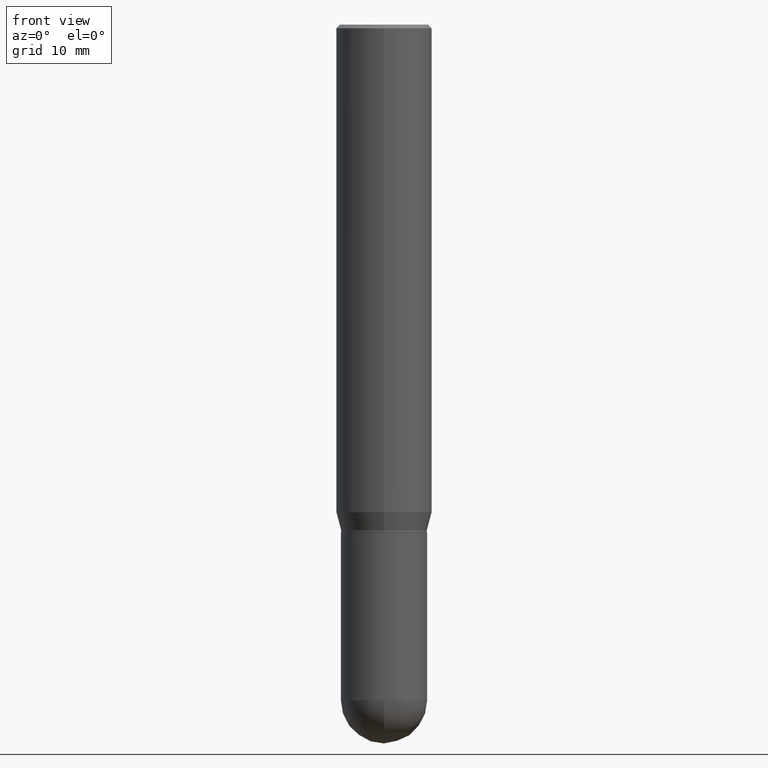
[diagram: clean part render]
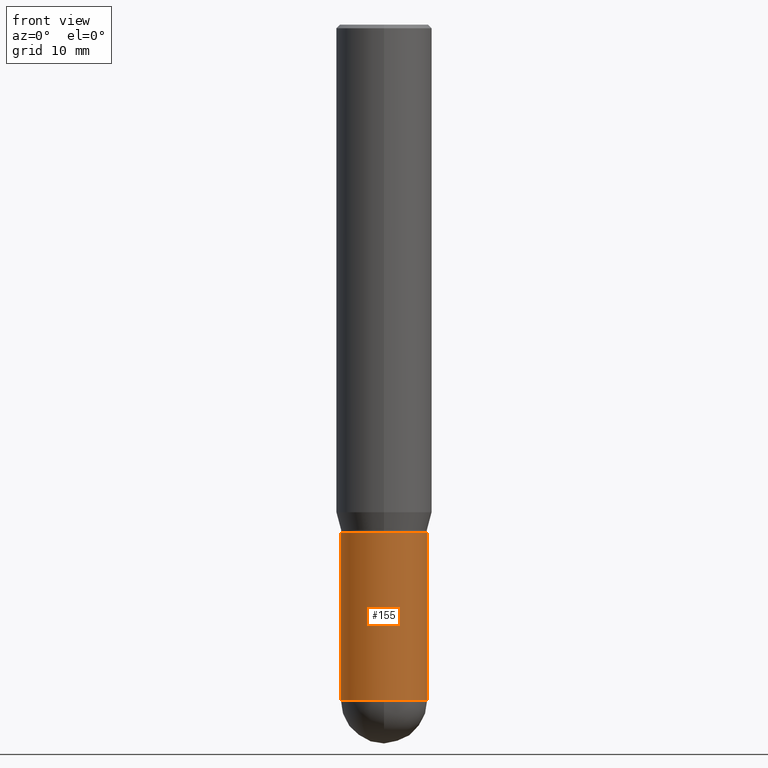
[diagram: same view with one face highlighted and labeled with its STEP entity id]
A machine part, front view. The second image highlights one B-rep face of the part: STEP entity #155.
In plain terms, the highlighted cylindrical surface (partial cylindrical patch) has radius 4.4996 mm, axis along (-0, 0, 1).
Its self-contained STEP definition (entity closure, byte-faithful):
#2 = AXIS2_PLACEMENT_3D ( 'NONE', #31, #149, #281 ) ;
#7 = CARTESIAN_POINT ( 'NONE',  ( 0.1771500000000000852, -8.522705948116114900E-15, -2.086699999999999999 ) ) ;
#20 = EDGE_CURVE ( 'NONE', #298, #193, #482, .T. ) ;
#31 = CARTESIAN_POINT ( 'NONE',  ( 6.787765491887772680E-29, -9.691130178159974964E-15, -2.775649999999999729 ) ) ;
#39 = EDGE_CURVE ( 'NONE', #460, #120, #474, .T. ) ;
#67 = CARTESIAN_POINT ( 'NONE',  ( -1.258726456398949454E-15, -0.1771500000000097441, -2.775649999999999284 ) ) ;
#71 = VERTEX_POINT ( 'NONE', #473 ) ;
#93 = ORIENTED_EDGE ( 'NONE', *, *, #301, .T. ) ;
#101 = EDGE_LOOP ( 'NONE', ( #115, #93, #267, #190, #196 ) ) ;
#115 = ORIENTED_EDGE ( 'NONE', *, *, #407, .F. ) ;
#120 = VERTEX_POINT ( 'NONE', #7 ) ;
#126 = CARTESIAN_POINT ( 'NONE',  ( 0.000000000000000000, 0.000000000000000000, 0.000000000000000000 ) ) ;
#149 = DIRECTION ( 'NONE',  ( -2.445468806185136597E-29, 3.491481338843145583E-15, 1.000000000000000000 ) ) ;
#155 = ADVANCED_FACE ( 'NONE', ( #208 ), #290, .T. ) ;
#163 = CARTESIAN_POINT ( 'NONE',  ( -0.1771500000000000852, -7.229675687562965256E-15, -2.086699999999999999 ) ) ;
#184 = VECTOR ( 'NONE', #291, 39.37007874015748143 ) ;
#190 = ORIENTED_EDGE ( 'NONE', *, *, #345, .T. ) ;
#193 = VERTEX_POINT ( 'NONE', #213 ) ;
#196 = ORIENTED_EDGE ( 'NONE', *, *, #39, .F. ) ;
#208 = FACE_OUTER_BOUND ( 'NONE', #101, .T. ) ;
#213 = CARTESIAN_POINT ( 'NONE',  ( 0.1771500000000000574, -9.725433982314104551E-15, -2.775649999999999729 ) ) ;
#246 = CARTESIAN_POINT ( 'NONE',  ( -0.1771500000000000574, 1.258726456399017887E-15, -8.713893512386568128E-30 ) ) ;
#267 = ORIENTED_EDGE ( 'NONE', *, *, #20, .T. ) ;
#272 = DIRECTION ( 'NONE',  ( 1.000000000000000000, -6.982962677686270655E-15, 0.000000000000000000 ) ) ;
#281 = DIRECTION ( 'NONE',  ( 1.000000000000000000, -6.982962677686270655E-15, 0.000000000000000000 ) ) ;
#283 = DIRECTION ( 'NONE',  ( -2.445468806185136877E-29, 3.491481338843145188E-15, 1.000000000000000000 ) ) ;
#290 = CYLINDRICAL_SURFACE ( 'NONE', #334, 0.1771500000000000574 ) ;
#291 = DIRECTION ( 'NONE',  ( -2.445468806185136877E-29, 3.491481338843145188E-15, 1.000000000000000000 ) ) ;
#298 = VERTEX_POINT ( 'NONE', #67 ) ;
#301 = EDGE_CURVE ( 'NONE', #71, #298, #442, .T. ) ;
#307 = CARTESIAN_POINT ( 'NONE',  ( 6.787765491887772680E-29, -9.691130178159974964E-15, -2.775649999999999729 ) ) ;
#324 = DIRECTION ( 'NONE',  ( -2.445468806185136597E-29, 3.491481338843145583E-15, 1.000000000000000000 ) ) ;
#334 = AXIS2_PLACEMENT_3D ( 'NONE', #126, #324, #481 ) ;
#336 = CARTESIAN_POINT ( 'NONE',  ( 5.102959757866523939E-29, -7.285674109763990928E-15, -2.086699999999999999 ) ) ;
#345 = EDGE_CURVE ( 'NONE', #193, #120, #469, .T. ) ;
#350 = CARTESIAN_POINT ( 'NONE',  ( 0.1771500000000000574, -1.237031838352122591E-15, 8.638147158322501361E-30 ) ) ;
#407 = EDGE_CURVE ( 'NONE', #71, #460, #439, .T. ) ;
#439 = LINE ( 'NONE', #246, #184 ) ;
#442 = CIRCLE ( 'NONE', #2, 0.1771500000000000574 ) ;
#456 = AXIS2_PLACEMENT_3D ( 'NONE', #336, #457, #492 ) ;
#457 = DIRECTION ( 'NONE',  ( -2.445468806185136597E-29, 3.491481338843145583E-15, 1.000000000000000000 ) ) ;
#460 = VERTEX_POINT ( 'NONE', #163 ) ;
#466 = DIRECTION ( 'NONE',  ( -2.445468806185136597E-29, 3.491481338843145583E-15, 1.000000000000000000 ) ) ;
#467 = VECTOR ( 'NONE', #283, 39.37007874015748143 ) ;
#469 = LINE ( 'NONE', #350, #467 ) ;
#473 = CARTESIAN_POINT ( 'NONE',  ( -0.1771500000000000574, -7.229675687562965256E-15, -2.775649999999999729 ) ) ;
#474 = CIRCLE ( 'NONE', #456, 0.1771500000000000852 ) ;
#481 = DIRECTION ( 'NONE',  ( 1.000000000000000000, -6.982962677686266711E-15, 4.876176775795934672E-29 ) ) ;
#482 = CIRCLE ( 'NONE', #490, 0.1771500000000000574 ) ;
#490 = AXIS2_PLACEMENT_3D ( 'NONE', #307, #466, #272 ) ;
#492 = DIRECTION ( 'NONE',  ( 1.000000000000000000, -6.982962677686269077E-15, 0.000000000000000000 ) ) ;